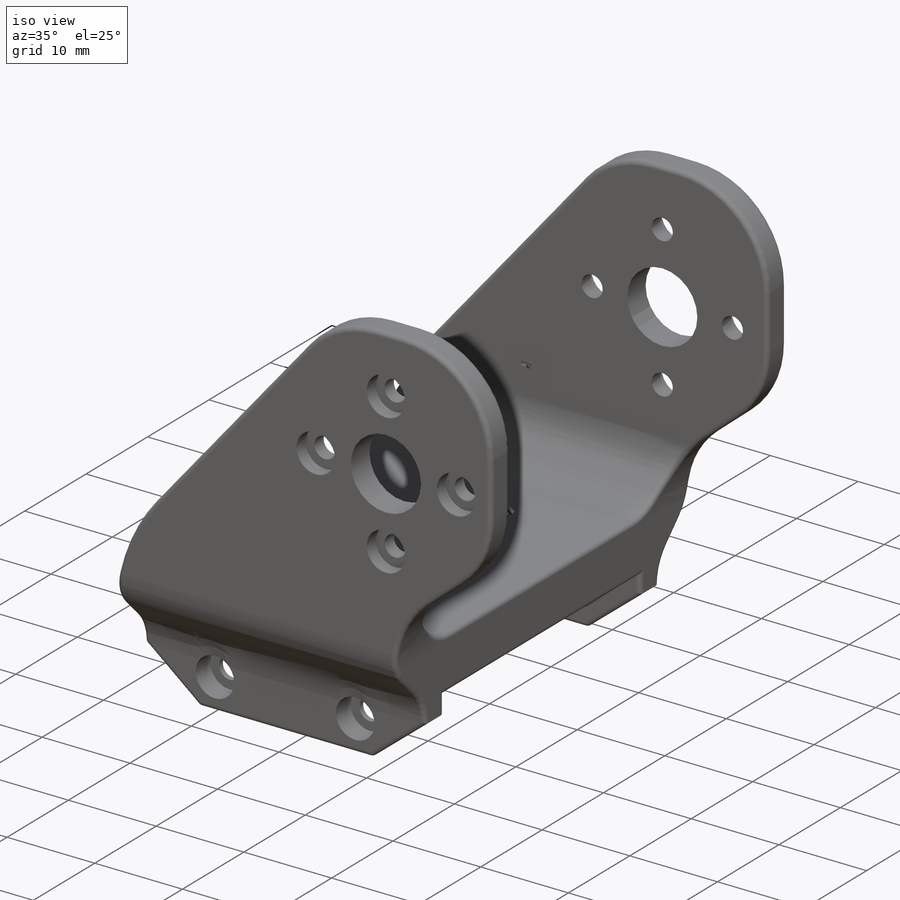
[diagram: iso view]
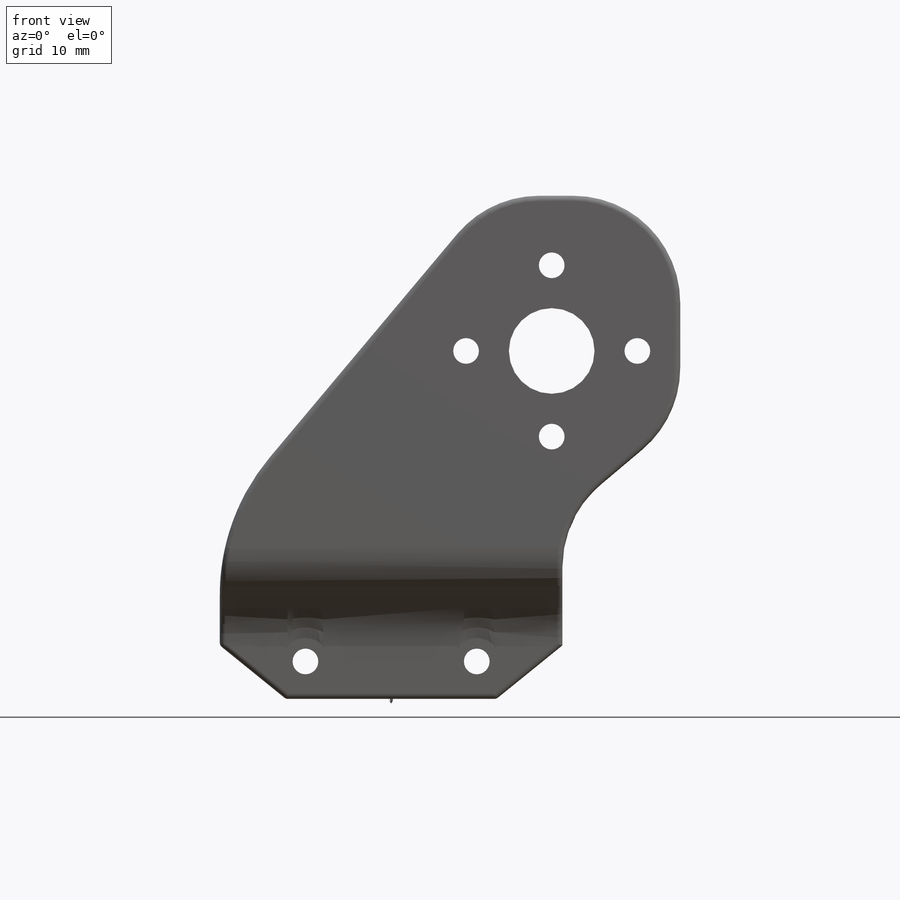
[diagram: front view]
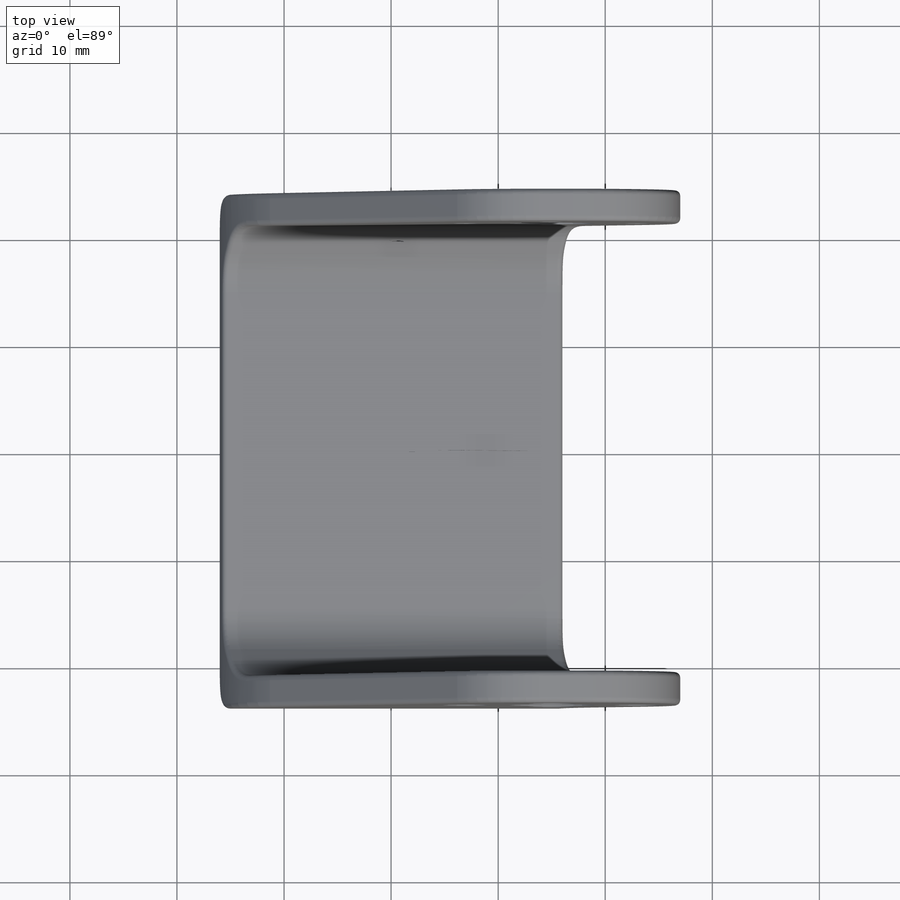
[diagram: top view]
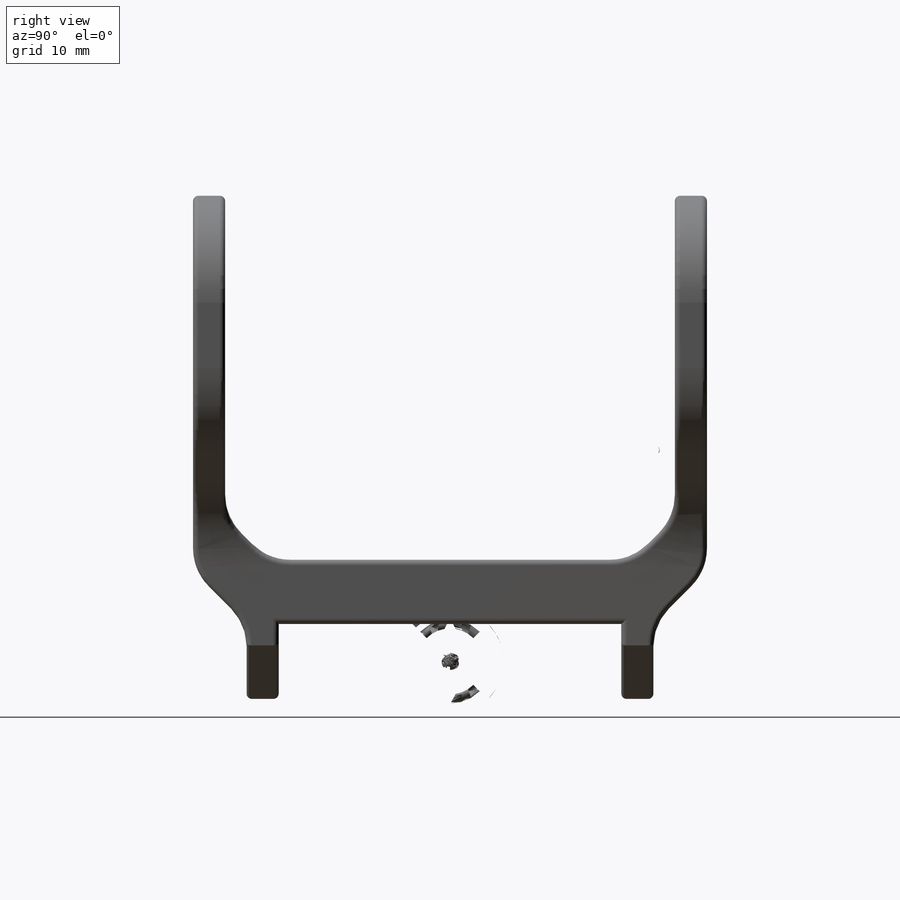
[diagram: right view]
SOLIDWORKS PART (.sldprt)
format: sldprt  version: not decoded by parser v0  size: 1,354,240 bytes
history: native  units: mm
features: sketch x13, fillet x5, cut_extrude x3, hole x3, chamfer x2, material x1, extrude x1, mirror x1 (+12 scaffold rows collapsed)
feature tree (41):
  scaffold x12  (default folders/planes/origin — collapsed)
  material  "ABS"
  sketch  "Sketch1"  dims[c1.D2=3.0mm c1.D5=3.0mm c1.D6=3.0mm c1.D1=32.0mm c1.D3=50.0mm c1.D4=46.5mm c2.D5=16.0mm c2.D6=3.5mm]
  sketch  "Sketch2"  dims[D1=38.0mm D2=29.0mm D3=42.0mm]
  sketch  "Sketch3"  dims[c1.D1=8.0mm c1.D2=16.0mm c2.D1=15.0mm c2.D3=15.0mm c2.D4=29.0mm c2.D5=8.0mm c3.D5=45.0deg]
  sketch  "Sketch6"  dims[D1=6.0mm D2=3.0mm D3=21.0mm D4=40.0mm D5=35.0mm D6=30.0mm]
  extrude  "Boss-Extrude2"  Depth=27mm
  chamfer  "Chamfer1"  Distance=30mm Angle=40deg
  sketch  "Sketch7"
  cut_extrude  "Cut-Extrude2"  [1 undecoded]
  sketch  "Sketch8"  dims[D1=3.0mm]
  cut_extrude  "Cut-Extrude3"  [1 undecoded]
  hole  "CBORE for M2 Hex Socket Head Cap Screw1"  Diameter=2.4mm Depth=19mm
  sketch  "Sketch10"
  sketch  "Sketch9"  dims[hole-wizard template sketch: 42 standard entries collapsed; hole parameters kept: c12.Thru Hole Depth=19.0mm c12.C'Bore Dia.=4.4mm c12.C'Bore Depth=2.4mm]
  hole  "CBORE for M2 Hex Socket Head Cap Screw2"  Diameter=2.4mm Depth=24mm
  sketch  "Sketch12"
  sketch  "Sketch11"  dims[hole-wizard template sketch: 42 standard entries collapsed; hole parameters kept: c12.Thru Hole Depth=24.0mm c12.C'Bore Dia.=4.4mm c12.C'Bore Depth=1.5mm]
  hole  "CBORE for M2 Pan Head Screw1"  Diameter=2.4mm Depth=3mm
  sketch  "Sketch16"
  sketch  "Sketch15"  dims[hole-wizard template sketch: 42 standard entries collapsed; hole parameters kept: c12.Thru Hole Depth=3.0mm c12.C'Bore Dia.=5.0mm c12.C'Bore Depth=1.5mm]
  sketch  "Sketch13"
  cut_extrude  "Cut-Extrude4"  [1 undecoded]
  chamfer  "Chamfer3"  Distance=5mm Angle=51deg
  fillet  "Fillet1"  Radius=10mm
  fillet  "Fillet5"  Radius=20mm
  fillet  "Fillet2"  Radius=5mm
  fillet  "Fillet3"  Radius=5mm
  fillet  "Fillet4"  Radius=0.5mm
  mirror  "Mirror1"
decode coverage: 19 of 28 modeling features carry decoded parameters
note: ~ marks probable driven/reference dimensions
note: 3 parameter values undecoded
summary: no parameter record found for 3 features
note: suppression state not decoded; provenance and decode notes live in map.json
